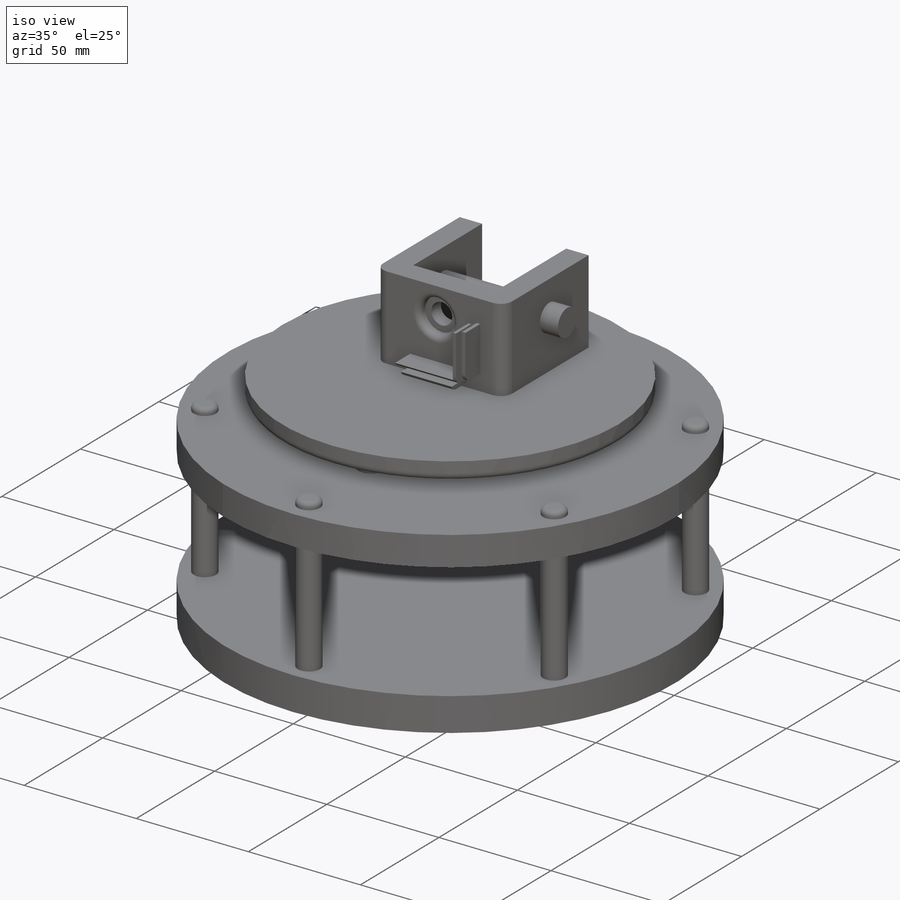
[diagram: iso view]
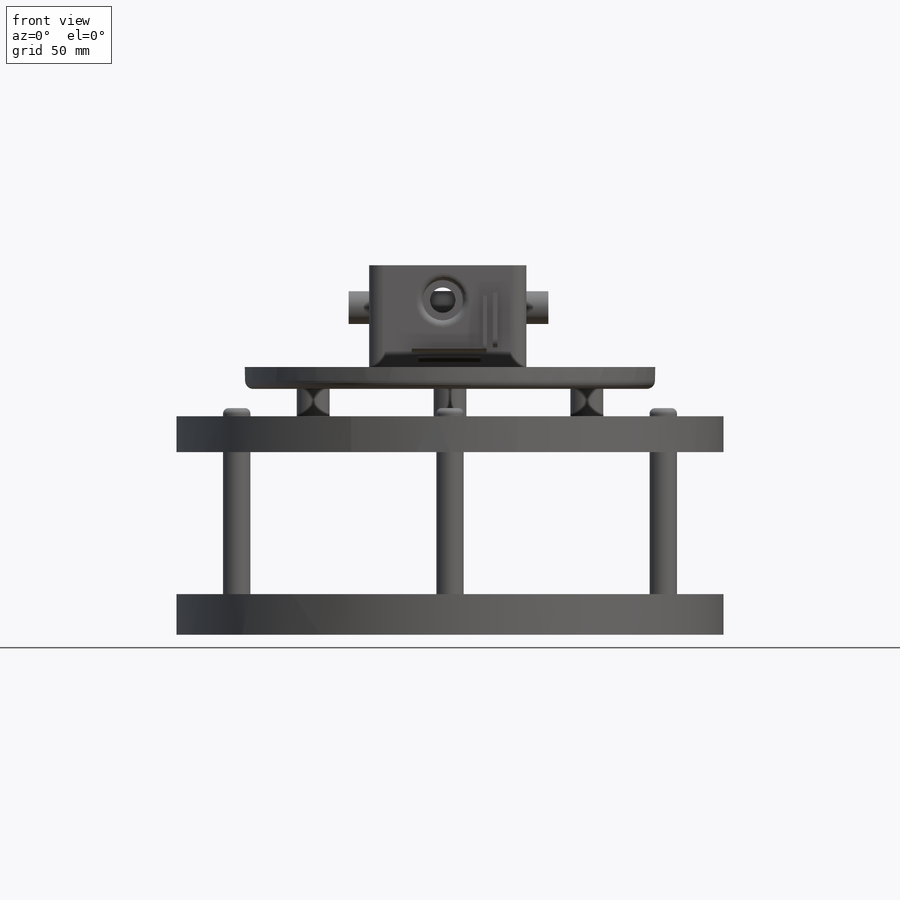
[diagram: front view]
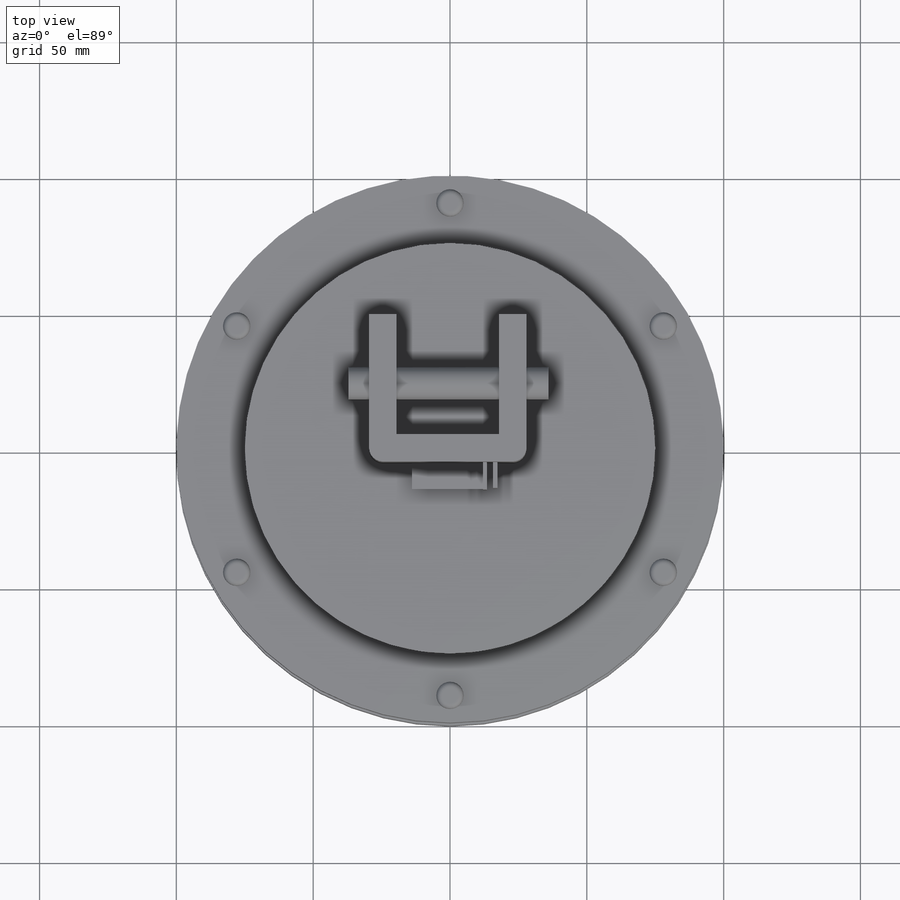
[diagram: top view]
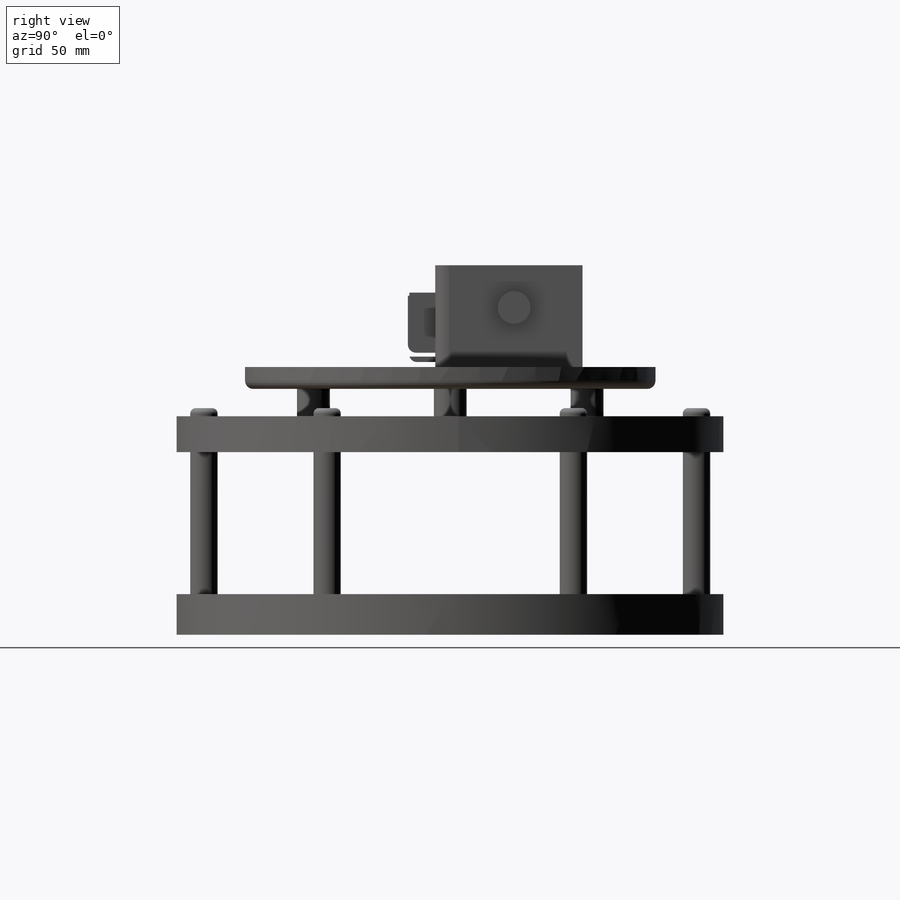
[diagram: right view]
SOLIDWORKS PART (.sldprt)
format: sldprt  version: not decoded by parser v0  size: 518,144 bytes
history: native  units: mm
features: sketch x12, fillet x12, extrude x9, pattern_circular x3, cut_extrude x2, material x1 (+11 scaffold rows collapsed)
feature tree (50):
  scaffold x11  (default folders/planes/origin — collapsed)
  material  "Material <not specified>"
  sketch  "Sketch1"  dims[D1=~99.879774mm]
  extrude  "Boss-Extrude1"  Depth=5mm
  sketch  "Sketch2"  dims[D1=90.0mm]
  extrude  "Boss-Extrude4"  Depth=60mm
  pattern_circular  "CirPattern1"  Count=6 Angle=60deg
  sketch  "Sketch3"  dims[D1=~98.405073mm]
  extrude  "Boss-Extrude5"  Depth=5mm
  sketch  "Sketch4"  dims[D1=~5.047448mm]
  extrude  "Boss-Extrude6"  Depth=3mm
  fillet  "Fillet2"  Radius=2mm
  pattern_circular  "CirPattern6"  Count=6 Angle=360deg
  fillet  "Fillet3"  Radius=2mm
  fillet  "Fillet4"  Radius=2mm
  fillet  "Fillet5"  Radius=2mm
  fillet  "Fillet6"  Radius=2mm
  fillet  "Fillet7"  Radius=2mm
  sketch  "Sketch5"  dims[D1=~6.076103mm]
  extrude  "Boss-Extrude8"  Depth=10mm
  pattern_circular  "CirPattern9"  Count=4 Angle=90deg
  sketch  "Sketch6"  dims[D1=65.0mm]
  extrude  "Boss-Extrude9"  Depth=8mm
  fillet  "Fillet8"  Radius=3mm
  sketch  "Sketch7"  dims[D1=~37.199967mm D5=10.0mm D6=10.0mm D7=5.0mm]
  sketch  "Sketch8"
  extrude  "Boss-Extrude10"  Depth=10mm
  sketch  "Sketch9"
  extrude  "Boss-Extrude11"  Depth=9.446558mm
  fillet  "Fillet10"  Radius=3mm
  fillet  "Fillet11"  Radius=3mm
  fillet  "Fillet12"  Radius=3mm
  sketch  "Sketch10"  dims[D3=6.0mm D1=10.0mm D2=25.0mm]
  extrude  "Boss-Extrude12"  Depth=8mm
  fillet  "Fillet14"  Radius=5mm
  sketch  "Sketch11"
  cut_extrude  "Cut-Extrude1"  Depth=4mm
  sketch  "Sketch12"
  cut_extrude  "Cut-Extrude2"  Depth=10mm
  fillet  "Fillet15"  Radius=2.5mm
decode coverage: 34 of 38 modeling features carry decoded parameters
note: ~ marks probable driven/reference dimensions
note: suppression state not decoded; provenance and decode notes live in map.json
